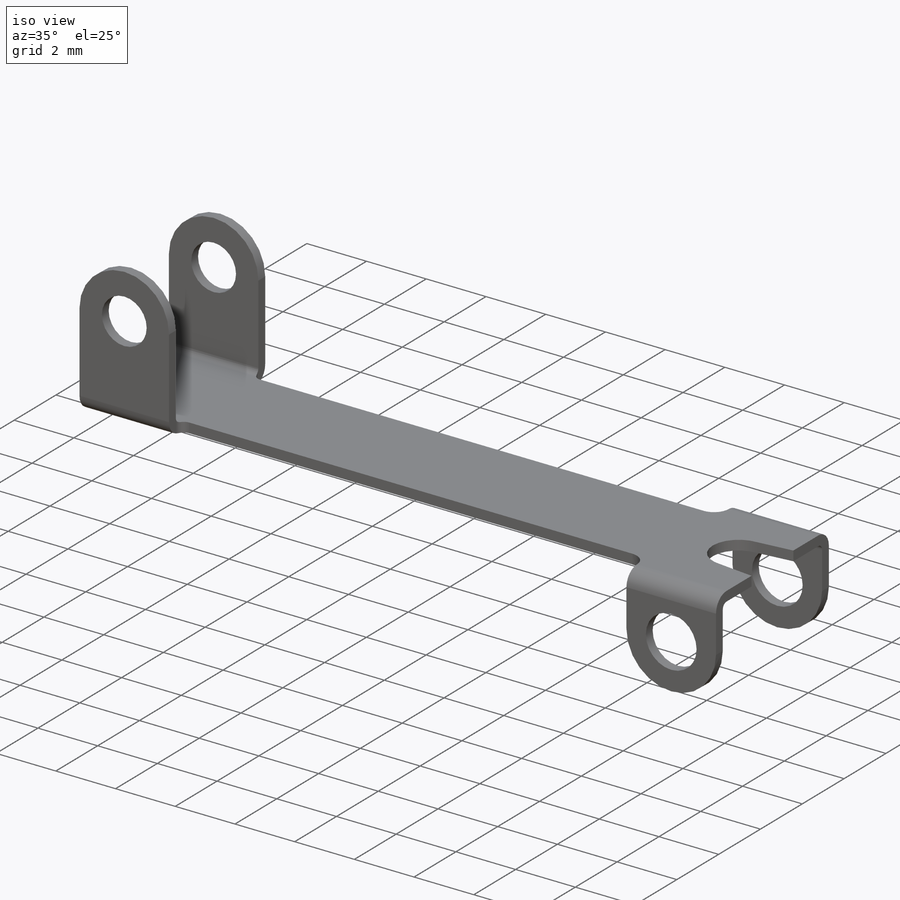
[diagram: iso view]
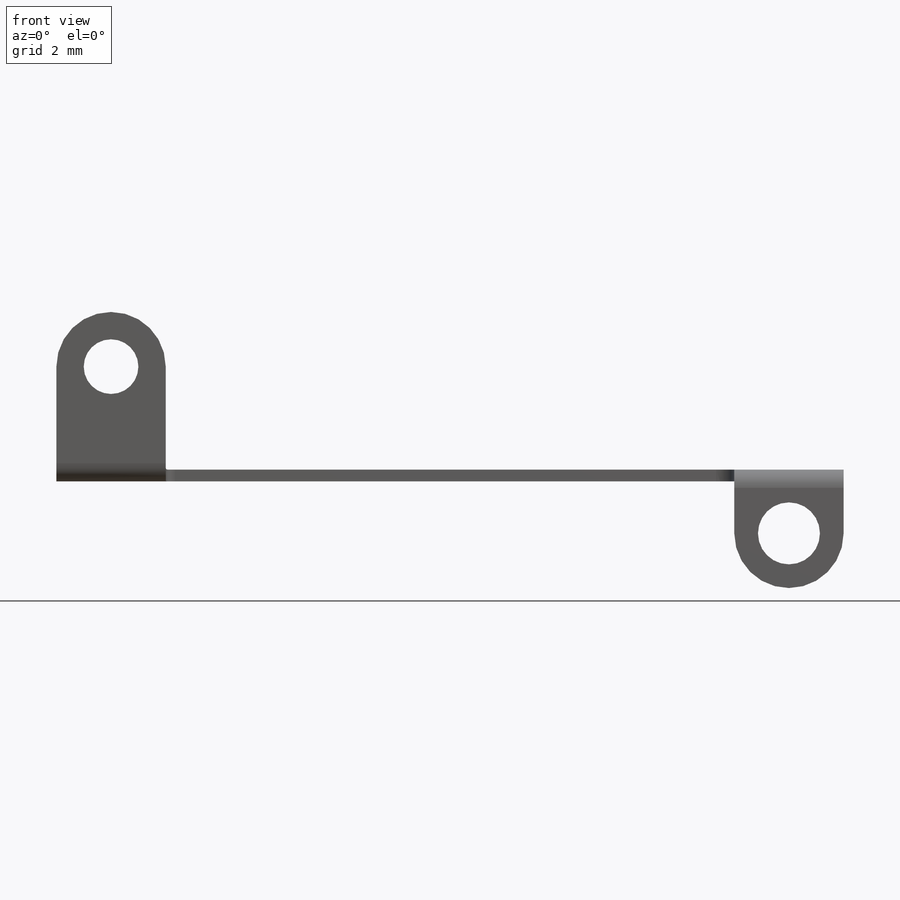
[diagram: front view]
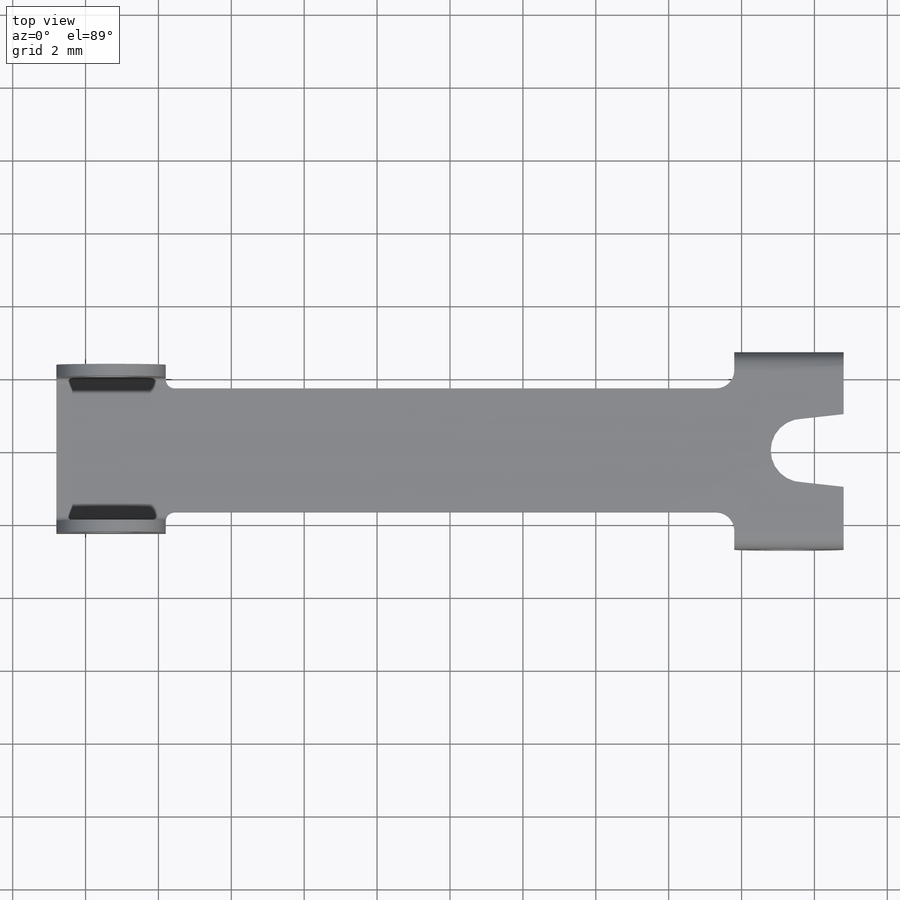
[diagram: top view]
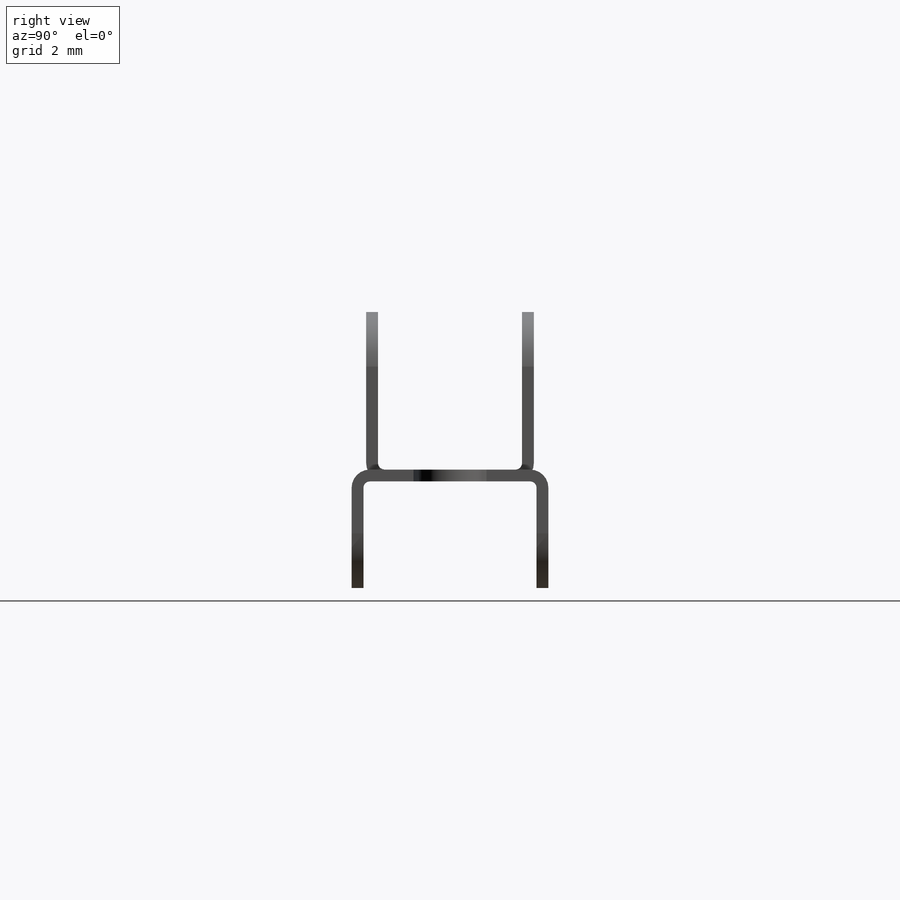
[diagram: right view]
SOLIDWORKS PART (.sldprt)
format: sldprt  version: not decoded by parser v0  size: 308,224 bytes
history: native  units: mm
features: sketch x4, extrude x3, fillet x2, material x1, cut_extrude x1 (+16 scaffold rows collapsed)
feature tree (27):
  scaffold x16  (default folders/planes/origin — collapsed)
  material  "Zinc Alloy 7; AG40B; Zn-4Al-0.015Mg"
  sketch  "Sketch1"  dims[c1.D12=0.25mm c1.D13=0.5mm c1.D14=1.75mm c1.D1=21.6mm c1.D2=10.8mm c1.D3=3.4mm c1.D4=1.7mm c1.D5=5.4mm c1.D6=2.7mm c1.D7=3.0mm c1.D8=~2.275619mm c2.D1=21.6mm c2.D8=4.6mm c2.D9=2.3mm c2.D10=3.0mm c2.D2=10.8mm c2.D11=21.6mm c2.D3=3.4mm c2.D15=1.125mm c2.D16=2.0mm c2.D17=1.0mm]
  extrude  "Extrude1"  Depth=0.325mm
  sketch  "Sketch2"  dims[c1.D1=0.325mm c1.D2=0.325mm c2.D1=2.375mm c2.D2=2.375mm c2.D3=0.5mm]
  extrude  "Extrude2"  Depth=2.925mm
  sketch  "Sketch3"  dims[D1=0.325mm D2=0.325mm]
  extrude  "Extrude3"  Depth=4.325mm
  sketch  "Sketch4"  dims[D1=1.7mm D4=1.5mm D2=2.0mm D3=2.0mm]
  cut_extrude  "Extrude4"  [1 undecoded]
  fillet  "Fillet1"  Radius=0.5mm
  fillet  "Fillet2"  Radius=0.175mm
decode coverage: 9 of 10 modeling features carry decoded parameters
note: ~ marks probable driven/reference dimensions
note: 1 parameter value undecoded
note: suppression state not decoded; provenance and decode notes live in map.json
